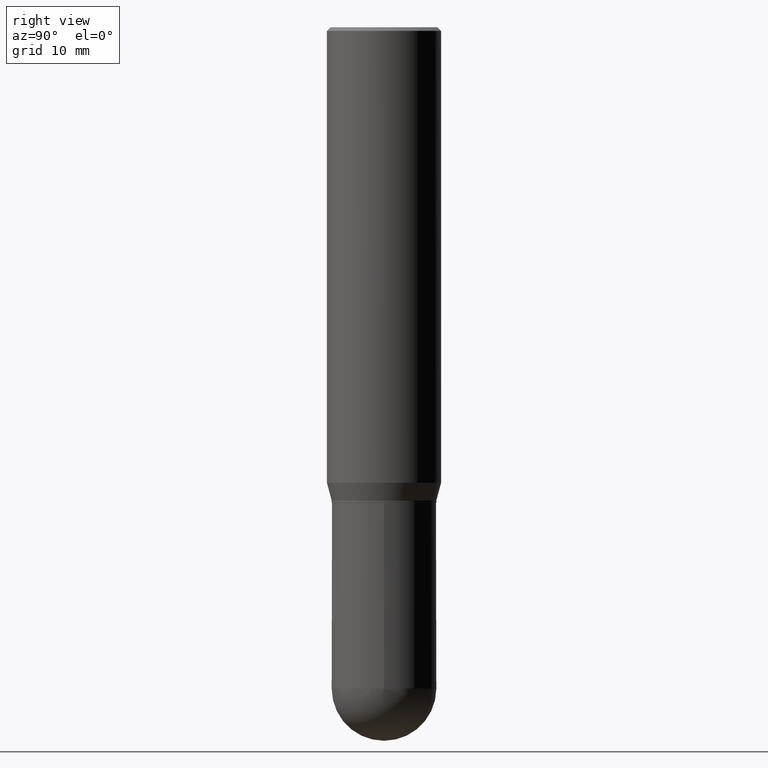
[diagram: clean part render]
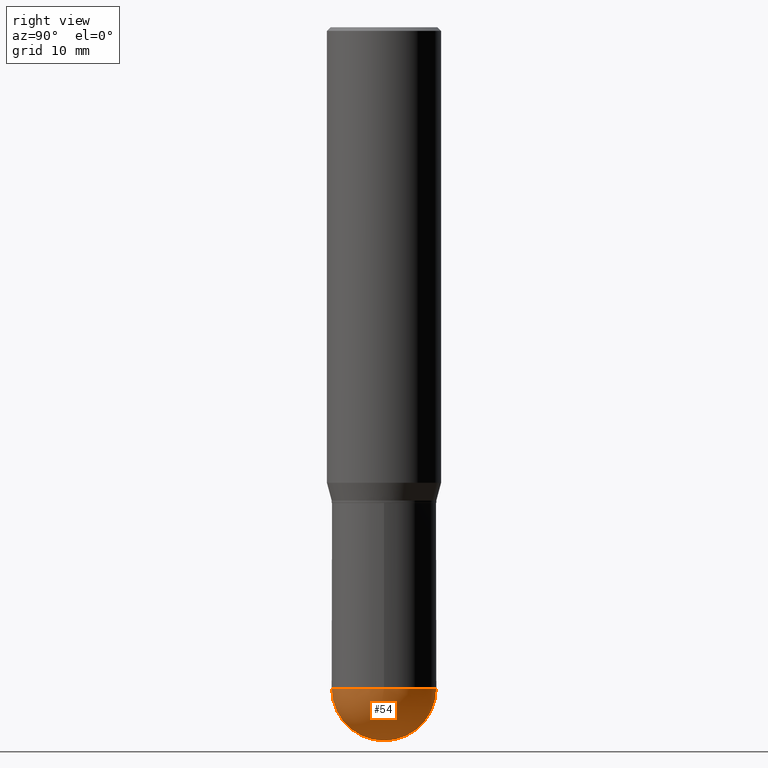
[diagram: same view with one face highlighted and labeled with its STEP entity id]
A machine part, right view. The second image highlights one B-rep face of the part: STEP entity #54.
In plain terms, the highlighted spherical surface has radius 5.5004 mm.
Its self-contained STEP definition (entity closure, byte-faithful):
#4 = DIRECTION ( 'NONE',  ( -2.445468806185136597E-29, 3.491481338843145583E-15, 1.000000000000000000 ) ) ;
#14 = ORIENTED_EDGE ( 'NONE', *, *, #80, .F. ) ;
#31 = VERTEX_POINT ( 'NONE', #449 ) ;
#40 = ORIENTED_EDGE ( 'NONE', *, *, #271, .F. ) ;
#52 = AXIS2_PLACEMENT_3D ( 'NONE', #169, #217, #327 ) ;
#54 = ADVANCED_FACE ( 'NONE', ( #307 ), #231, .T. ) ;
#59 = DIRECTION ( 'NONE',  ( 6.982962677686265922E-15, 1.000000000000000000, -2.523064413451176940E-15 ) ) ;
#72 = ORIENTED_EDGE ( 'NONE', *, *, #172, .F. ) ;
#80 = EDGE_CURVE ( 'NONE', #378, #287, #98, .T. ) ;
#98 = CIRCLE ( 'NONE', #489, 0.2165500000000001035 ) ;
#113 = DIRECTION ( 'NONE',  ( 6.982962677686265922E-15, 1.000000000000000000, 0.000000000000000000 ) ) ;
#131 = CIRCLE ( 'NONE', #353, 0.2165500000000001035 ) ;
#154 = CARTESIAN_POINT ( 'NONE',  ( 7.211720977907380015E-29, -1.032290596055380666E-14, -2.952799999999999869 ) ) ;
#169 = CARTESIAN_POINT ( 'NONE',  ( 6.691414020924076964E-29, -9.553565813409554172E-15, -2.736249999999999183 ) ) ;
#172 = EDGE_CURVE ( 'NONE', #31, #337, #441, .T. ) ;
#185 = CARTESIAN_POINT ( 'NONE',  ( 6.672895394931898871E-29, -9.580085539845092024E-15, -2.736249999999999627 ) ) ;
#187 = DIRECTION ( 'NONE',  ( -1.000000000000000000, 7.105427357601001070E-15, -4.926315508542082329E-29 ) ) ;
#191 = DIRECTION ( 'NONE',  ( -7.105427357601001070E-15, -1.000000000000000000, 0.000000000000000000 ) ) ;
#217 = DIRECTION ( 'NONE',  ( -2.445468806185136597E-29, 3.491481338843145583E-15, 1.000000000000000000 ) ) ;
#231 = SPHERICAL_SURFACE ( 'NONE', #358, 0.2165500000000001035 ) ;
#235 = CARTESIAN_POINT ( 'NONE',  ( -1.538680294288430240E-15, -0.2165500000000096792, -2.736249999999998295 ) ) ;
#265 = CARTESIAN_POINT ( 'NONE',  ( 1.512160567853028073E-15, 0.2165499999999904723, -2.736249999999999627 ) ) ;
#271 = EDGE_CURVE ( 'NONE', #287, #31, #507, .T. ) ;
#285 = EDGE_CURVE ( 'NONE', #378, #337, #131, .T. ) ;
#287 = VERTEX_POINT ( 'NONE', #235 ) ;
#304 = DIRECTION ( 'NONE',  ( -1.000000000000000000, 6.982962677686265922E-15, -4.883557194083112340E-29 ) ) ;
#307 = FACE_OUTER_BOUND ( 'NONE', #372, .T. ) ;
#309 = ORIENTED_EDGE ( 'NONE', *, *, #285, .T. ) ;
#327 = DIRECTION ( 'NONE',  ( 1.000000000000000000, -6.982962677686263555E-15, 0.000000000000000000 ) ) ;
#337 = VERTEX_POINT ( 'NONE', #265 ) ;
#339 = CARTESIAN_POINT ( 'NONE',  ( 6.672895394931898871E-29, -9.580085539845092024E-15, -2.736249999999999627 ) ) ;
#353 = AXIS2_PLACEMENT_3D ( 'NONE', #416, #491, #113 ) ;
#358 = AXIS2_PLACEMENT_3D ( 'NONE', #185, #304, #59 ) ;
#372 = EDGE_LOOP ( 'NONE', ( #14, #309, #72, #40 ) ) ;
#378 = VERTEX_POINT ( 'NONE', #154 ) ;
#390 = AXIS2_PLACEMENT_3D ( 'NONE', #438, #4, #444 ) ;
#416 = CARTESIAN_POINT ( 'NONE',  ( 6.672895394931898871E-29, -9.580085539845092024E-15, -2.736249999999999627 ) ) ;
#438 = CARTESIAN_POINT ( 'NONE',  ( 6.691414020924076964E-29, -9.553565813409554172E-15, -2.736249999999999183 ) ) ;
#441 = CIRCLE ( 'NONE', #390, 0.2165500000000000480 ) ;
#444 = DIRECTION ( 'NONE',  ( 1.000000000000000000, -6.982962677686263555E-15, 0.000000000000000000 ) ) ;
#449 = CARTESIAN_POINT ( 'NONE',  ( 0.2165500000000000480, -9.725433982314102974E-15, -2.736249999999999183 ) ) ;
#489 = AXIS2_PLACEMENT_3D ( 'NONE', #339, #187, #191 ) ;
#491 = DIRECTION ( 'NONE',  ( 1.000000000000000000, -6.982962677686265922E-15, 4.883557194083112340E-29 ) ) ;
#507 = CIRCLE ( 'NONE', #52, 0.2165500000000000480 ) ;